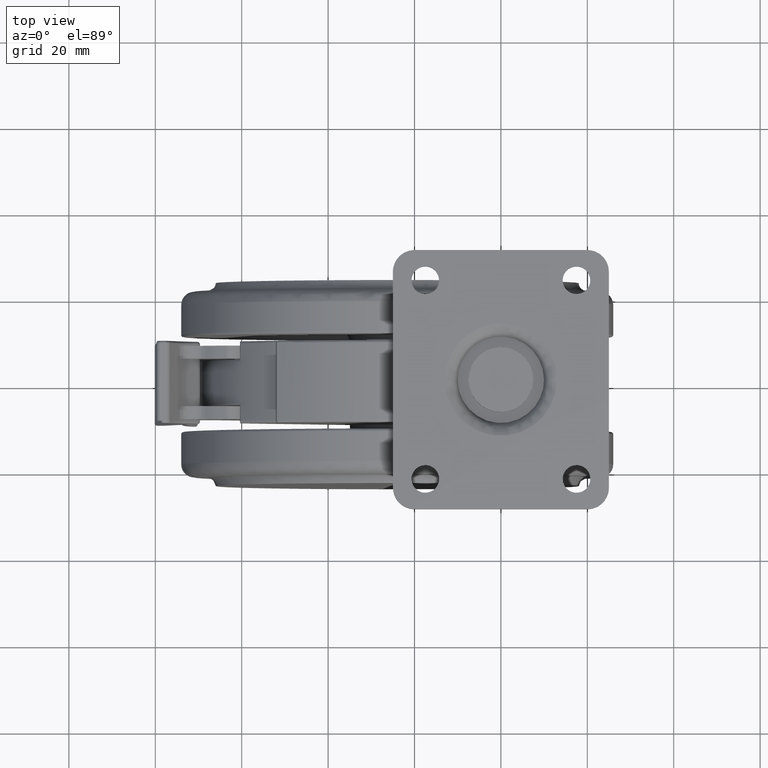
[diagram: clean part render]
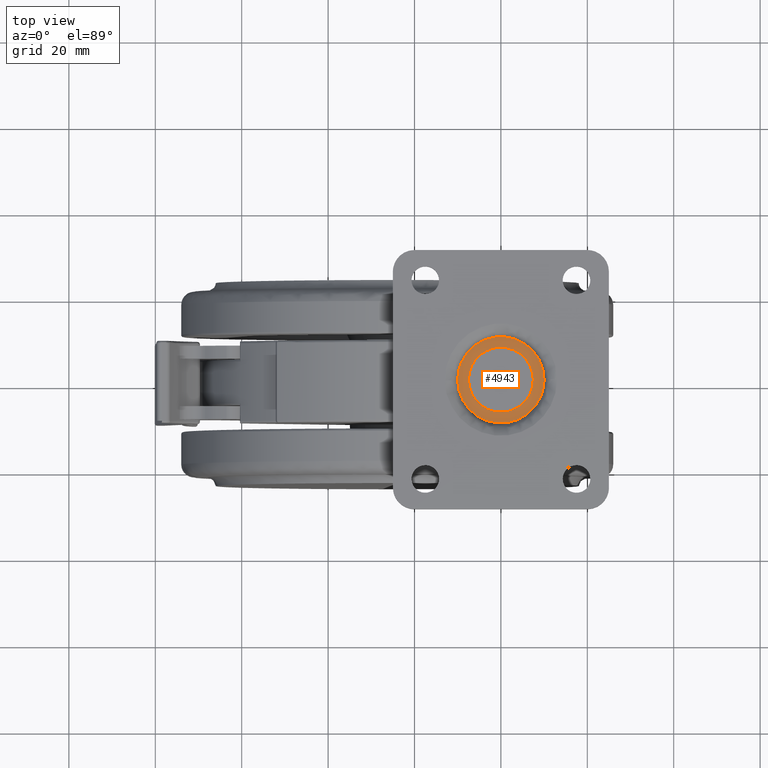
[diagram: same view with one face highlighted and labeled with its STEP entity id]
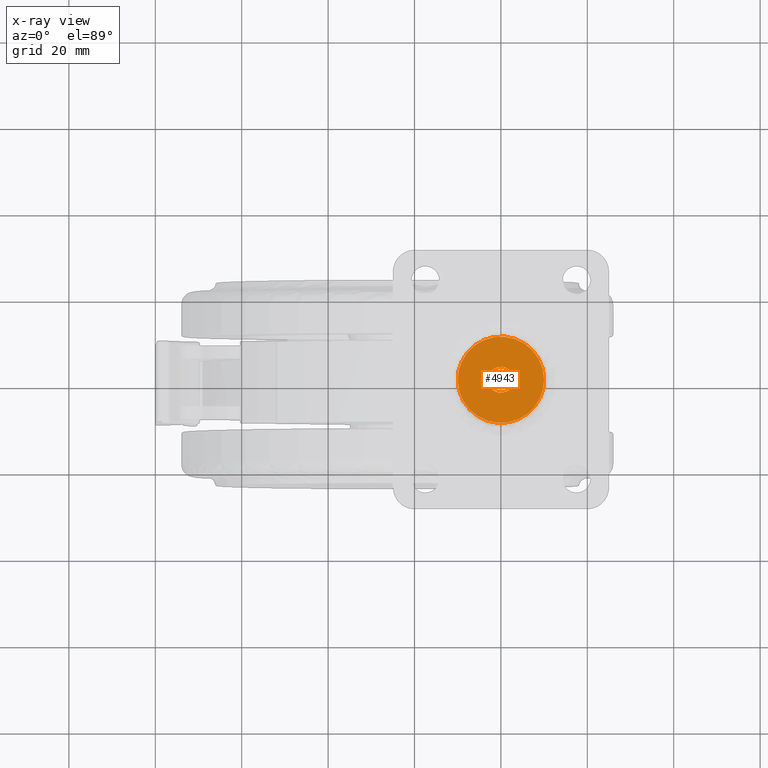
[diagram: x-ray of the same camera — body ghosted, the highlighted face saturated]
A machine part, top view. The second image highlights one B-rep face of the part: STEP entity #4943.
The next image is the same camera in x-ray: the body ghosted, the highlighted face saturated — about 0% of this face is hidden behind the body in this view.
In plain terms, the highlighted face is a freeform B-spline surface patch.
Its self-contained STEP definition (entity closure, byte-faithful):
#3863=CARTESIAN_POINT('',(-0.183145619296625,-2.994404395223273,11.0));
#3864=VERTEX_POINT('',#3863);
#3865=CARTESIAN_POINT('',(3.0,0.0,11.0));
#3866=VERTEX_POINT('',#3865);
#3867=CARTESIAN_POINT('',(-0.183145619296625,-2.994404395223273,11.000000000000004));
#3868=CARTESIAN_POINT('',(-0.091658290242764,-3.000000000000000,11.000000000000004));
#3869=CARTESIAN_POINT('',(0.0,-3.0,11.0));
#3870=CARTESIAN_POINT('',(3.0,-3.0,11.0));
#3871=CARTESIAN_POINT('',(3.0,0.0,11.0));
#3879=(BOUNDED_CURVE()B_SPLINE_CURVE(2,(#3867,#3868,#3869,#3870,#3871),.UNSPECIFIED.,.F.,.U.)B_SPLINE_CURVE_WITH_KNOTS((3,2,3),(0.239332962202090,0.250000000000000,0.500000000000000),.UNSPECIFIED.)CURVE()GEOMETRIC_REPRESENTATION_ITEM()RATIONAL_B_SPLINE_CURVE((0.976072041587735,0.987502787856662,1.0,0.707106781186548,1.0))REPRESENTATION_ITEM(''));
#3880=EDGE_CURVE('',#3864,#3866,#3879,.T.);
#3882=CARTESIAN_POINT('',(0.183145619296624,2.994404395223273,11.0));
#3883=VERTEX_POINT('',#3882);
#3884=CARTESIAN_POINT('',(3.0,0.0,11.0));
#3885=CARTESIAN_POINT('',(3.000000000000000,2.822118200063629,10.999999999999998));
#3886=CARTESIAN_POINT('',(0.183145619296625,2.994404395223274,10.999999999999996));
#3894=(BOUNDED_CURVE()B_SPLINE_CURVE(2,(#3884,#3885,#3886),.UNSPECIFIED.,.F.,.U.)B_SPLINE_CURVE_WITH_KNOTS((3,3),(0.500000000000000,0.739332962202090),.UNSPECIFIED.)CURVE()GEOMETRIC_REPRESENTATION_ITEM()RATIONAL_B_SPLINE_CURVE((1.0,0.719603993329886,0.976072041587735))REPRESENTATION_ITEM(''));
#3895=EDGE_CURVE('',#3866,#3883,#3894,.T.);
#3930=CARTESIAN_POINT('',(-3.0,0.0,11.0));
#3931=VERTEX_POINT('',#3930);
#3932=CARTESIAN_POINT('',(-3.0,0.0,11.0));
#3933=CARTESIAN_POINT('',(-3.0,-2.822118200063629,11.0));
#3934=CARTESIAN_POINT('',(-0.183145619296625,-2.994404395223273,11.000000000000004));
#3942=(BOUNDED_CURVE()B_SPLINE_CURVE(2,(#3932,#3933,#3934),.UNSPECIFIED.,.F.,.U.)B_SPLINE_CURVE_WITH_KNOTS((3,3),(0.0,0.239332962202090),.UNSPECIFIED.)CURVE()GEOMETRIC_REPRESENTATION_ITEM()RATIONAL_B_SPLINE_CURVE((1.0,0.719603993329886,0.976072041587735))REPRESENTATION_ITEM(''));
#3943=EDGE_CURVE('',#3931,#3864,#3942,.T.);
#3949=CARTESIAN_POINT('',(0.183145619296625,2.994404395223274,10.999999999999996));
#3950=CARTESIAN_POINT('',(0.091658290242764,3.000000000000000,11.000000000000005));
#3951=CARTESIAN_POINT('',(0.0,3.0,11.0));
#3952=CARTESIAN_POINT('',(-3.0,3.0,11.0));
#3953=CARTESIAN_POINT('',(-3.0,0.0,11.0));
#3961=(BOUNDED_CURVE()B_SPLINE_CURVE(2,(#3949,#3950,#3951,#3952,#3953),.UNSPECIFIED.,.F.,.U.)B_SPLINE_CURVE_WITH_KNOTS((3,2,3),(0.739332962202090,0.750000000000000,1.0),.UNSPECIFIED.)CURVE()GEOMETRIC_REPRESENTATION_ITEM()RATIONAL_B_SPLINE_CURVE((0.976072041587735,0.987502787856661,1.0,0.707106781186548,1.0))REPRESENTATION_ITEM(''));
#3962=EDGE_CURVE('',#3883,#3931,#3961,.T.);
#4849=CARTESIAN_POINT('',(-10.998999961236120,10.998783483873829,11.0));
#4850=CARTESIAN_POINT('',(10.999000497677921,10.998783483873821,11.0));
#4851=CARTESIAN_POINT('',(-10.998999961236120,-10.998784020305131,11.0));
#4852=CARTESIAN_POINT('',(10.999000497677921,-10.998784020305131,11.0));
#4853=B_SPLINE_SURFACE_WITH_KNOTS('',1,1,((#4849,#4851),(#4850,#4852)),.UNSPECIFIED.,.F.,.F.,.U.,(2,2),(2,2),(0.0,21.998000458914039),(0.0,21.997567504178949),.UNSPECIFIED.);
#4854=CARTESIAN_POINT('',(-9.999999999999998,-2.842171E-014,11.0));
#4855=VERTEX_POINT('',#4854);
#4856=CARTESIAN_POINT('',(-9.999210442036990,-0.125660398926525,11.000000001315010));
#4857=VERTEX_POINT('',#4856);
#4858=CARTESIAN_POINT('',(-9.999999999999998,-2.842171E-014,11.0));
#4859=CARTESIAN_POINT('',(-9.999999999999998,-0.062832679965417,11.000000000657508));
#4860=CARTESIAN_POINT('',(-9.999210442036990,-0.125660398926525,11.000000001315010));
#4868=(BOUNDED_CURVE()B_SPLINE_CURVE(2,(#4858,#4859,#4860),.UNSPECIFIED.,.F.,.U.)B_SPLINE_CURVE_WITH_KNOTS((3,3),(0.0,0.002215704079907),.UNSPECIFIED.)CURVE()GEOMETRIC_REPRESENTATION_ITEM()RATIONAL_B_SPLINE_CURVE((1.0,0.997404141200392,0.994854295640249))REPRESENTATION_ITEM(''));
#4869=EDGE_CURVE('',#4855,#4857,#4868,.T.);
#4870=ORIENTED_EDGE('',*,*,#4869,.T.);
#4871=CARTESIAN_POINT('',(10.0,-2.842171E-014,11.0));
#4872=VERTEX_POINT('',#4871);
#4873=CARTESIAN_POINT('',(-9.999210442036990,-0.125660398926525,11.000000001315010));
#4874=CARTESIAN_POINT('',(-9.991584956822020,-0.736728608255327,11.000000001314790));
#4875=CARTESIAN_POINT('',(-9.876561124958373,-1.835395113749764,11.000000001307590));
#4876=CARTESIAN_POINT('',(-9.420187678228176,-3.489388656407475,11.000000001278330));
#4877=CARTESIAN_POINT('',(-8.783241076648572,-4.862689170918179,11.000000001237080));
#4878=CARTESIAN_POINT('',(-7.743342192294659,-6.426151473467301,11.000000001169230));
#4879=CARTESIAN_POINT('',(-6.390362559936295,-7.803468541817854,11.000000001080849));
#4880=CARTESIAN_POINT('',(-4.768444514247650,-8.838656859909417,11.000000000974820));
#4881=CARTESIAN_POINT('',(-3.382861929668232,-9.439640302203825,11.000000000883841));
#4882=CARTESIAN_POINT('',(-1.931218587892006,-9.858646761243314,11.000000000788081));
#4883=CARTESIAN_POINT('',(-0.101424157619270,-10.071804969463850,11.000000000669420));
#4884=CARTESIAN_POINT('',(1.857761280041381,-9.891374699664755,11.000000000538980));
#4885=CARTESIAN_POINT('',(3.583145851583783,-9.381243092137506,11.000000000425860));
#4886=CARTESIAN_POINT('',(5.020348513729594,-8.693542055815916,11.000000000331029));
#4887=CARTESIAN_POINT('',(6.235475117415620,-7.863855193605613,11.000000000250759));
#4888=CARTESIAN_POINT('',(7.465383268697934,-6.727860466339267,11.000000000169431));
#4889=CARTESIAN_POINT('',(8.487022209922726,-5.394872361944449,11.000000000101700));
#4890=CARTESIAN_POINT('',(9.246697602672290,-3.901205812848386,11.000000000051140));
#4891=CARTESIAN_POINT('',(9.831630577260066,-2.159223725873244,11.000000000011960));
#4892=CARTESIAN_POINT('',(10.000236138117380,-0.855600593949156,11.000000000000339));
#4893=CARTESIAN_POINT('',(10.0,-2.842171E-014,11.0));
#4894=B_SPLINE_CURVE_WITH_KNOTS('',3,(#4873,#4874,#4875,#4876,#4877,#4878,#4879,#4880,#4881,#4882,#4883,#4884,#4885,#4886,#4887,#4888,#4889,#4890,#4891,#4892,#4893),.UNSPECIFIED.,.F.,.U.,(4,1,1,1,1,1,1,1,1,1,1,1,1,1,1,1,1,1,4),(0.000000160681417,1.833352454004761,3.300158670396307,5.133580809233884,6.355870743076679,8.922683535071801,10.878363311049871,12.100616299522560,13.445187437616790,15.400856816869579,17.600804872870871,19.312075568485952,20.778782872413601,22.367788003101889,23.712304469356940,25.790218137897678,27.379161800049800,28.723722502719710,31.290457595474319),.UNSPECIFIED.);
#4895=EDGE_CURVE('',#4857,#4872,#4894,.T.);
#4896=ORIENTED_EDGE('',*,*,#4895,.T.);
#4897=CARTESIAN_POINT('',(9.999210442036990,0.125660398926469,11.000000001315019));
#4898=VERTEX_POINT('',#4897);
#4899=CARTESIAN_POINT('',(10.0,-2.842171E-014,11.0));
#4900=CARTESIAN_POINT('',(9.999999999999998,0.062832679965360,11.000000000657508));
#4901=CARTESIAN_POINT('',(9.999210442036990,0.125660398926469,11.000000001315019));
#4909=(BOUNDED_CURVE()B_SPLINE_CURVE(2,(#4899,#4900,#4901),.UNSPECIFIED.,.F.,.U.)B_SPLINE_CURVE_WITH_KNOTS((3,3),(0.500000000000000,0.502215704079907),.UNSPECIFIED.)CURVE()GEOMETRIC_REPRESENTATION_ITEM()RATIONAL_B_SPLINE_CURVE((1.0,0.997404141200392,0.994854295640249))REPRESENTATION_ITEM(''));
#4910=EDGE_CURVE('',#4872,#4898,#4909,.T.);
#4911=ORIENTED_EDGE('',*,*,#4910,.T.);
#4912=CARTESIAN_POINT('',(9.999210442036990,0.125660398926469,11.000000001315019));
#4913=CARTESIAN_POINT('',(9.988717924916402,0.981200704330008,11.000000001314660));
#4914=CARTESIAN_POINT('',(9.774828122281711,2.485962706487349,11.000000001301281));
#4915=CARTESIAN_POINT('',(9.010948957183945,4.472960298777718,11.000000001251790));
#4916=CARTESIAN_POINT('',(7.995214410392952,6.105798282817312,11.000000001185770));
#4917=CARTESIAN_POINT('',(6.883894258808348,7.308448449230334,11.000000001113190));
#4918=CARTESIAN_POINT('',(5.574727905215140,8.350071291364156,11.000000001027420));
#4919=CARTESIAN_POINT('',(3.939912807887913,9.284787149634168,11.000000000920480));
#4920=CARTESIAN_POINT('',(1.855672703815166,9.914030124680046,11.000000000783890));
#4921=CARTESIAN_POINT('',(-0.145793172409523,10.048149856258370,11.000000000651481));
#4922=CARTESIAN_POINT('',(-1.892903711201916,9.865712933955635,11.000000000537600));
#4923=CARTESIAN_POINT('',(-3.746774131960395,9.354670035067761,11.000000000414470));
#4924=CARTESIAN_POINT('',(-5.418934777316339,8.477753104040497,11.000000000305690));
#4925=CARTESIAN_POINT('',(-7.048256407173345,7.180526294901401,11.000000000196060));
#4926=CARTESIAN_POINT('',(-8.197316613487079,5.840771943560483,11.000000000121400));
#4927=CARTESIAN_POINT('',(-9.039787503044231,4.346004309628076,11.000000000064871));
#4928=CARTESIAN_POINT('',(-9.568292832597464,3.018685481445888,11.000000000029599));
#4929=CARTESIAN_POINT('',(-9.915655794287089,1.588928253711490,11.000000000006221));
#4930=CARTESIAN_POINT('',(-10.000031387495540,0.529635386828952,11.000000000000220));
#4931=CARTESIAN_POINT('',(-9.999999999999998,-2.842171E-014,11.0));
#4932=B_SPLINE_CURVE_WITH_KNOTS('',3,(#4912,#4913,#4914,#4915,#4916,#4917,#4918,#4919,#4920,#4921,#4922,#4923,#4924,#4925,#4926,#4927,#4928,#4929,#4930,#4931),.UNSPECIFIED.,.F.,.U.,(4,1,1,1,1,1,1,1,1,1,1,1,1,1,1,1,1,4),(0.000000160683694,2.566751811116777,4.522437080704240,6.355870743077656,8.311536042998533,9.411590287411425,11.367242993590990,13.934083620334100,15.889614613710730,17.356362408755810,19.189815173744119,21.634401332556010,22.978931199372632,25.423500882707032,26.890277861292549,28.112535319959040,29.701546531589791,31.290457595474280),.UNSPECIFIED.);
#4933=EDGE_CURVE('',#4898,#4855,#4932,.T.);
#4934=ORIENTED_EDGE('',*,*,#4933,.T.);
#4935=EDGE_LOOP('',(#4870,#4896,#4911,#4934));
#4936=FACE_OUTER_BOUND('',#4935,.T.);
#4937=ORIENTED_EDGE('',*,*,#3895,.F.);
#4938=ORIENTED_EDGE('',*,*,#3880,.F.);
#4939=ORIENTED_EDGE('',*,*,#3943,.F.);
#4940=ORIENTED_EDGE('',*,*,#3962,.F.);
#4941=EDGE_LOOP('',(#4937,#4938,#4939,#4940));
#4942=FACE_BOUND('',#4941,.T.);
#4943=ADVANCED_FACE('',(#4936,#4942),#4853,.F.);